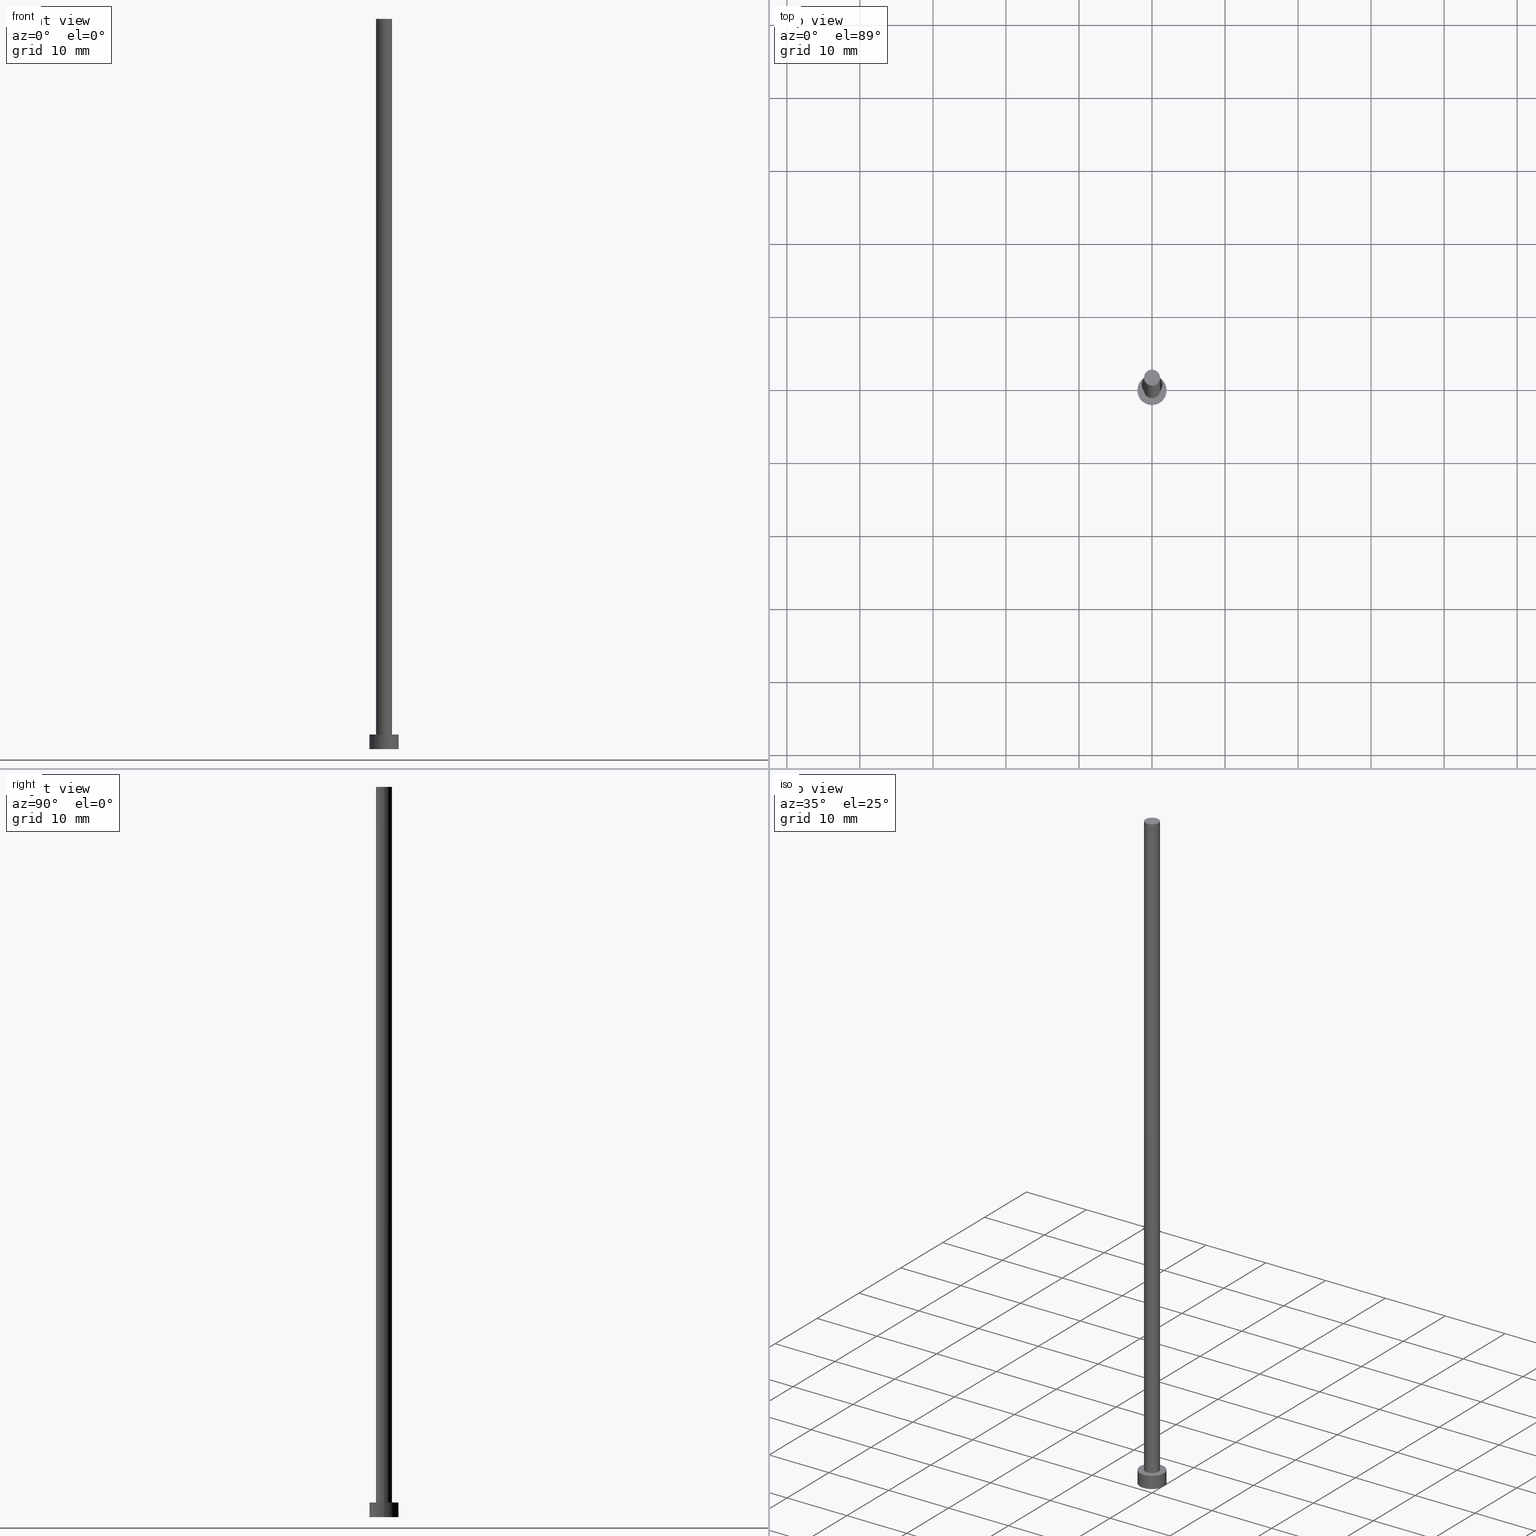
[diagram: canonical four-view strip — front | top / right | iso, engineering-drawing reading convention]
A machine part, canonical four-view strip (front | top / right | iso — engineering-drawing reading convention). The complete STEP part file that produces these views, byte-faithful:
ISO-10303-21;
HEADER;
FILE_DESCRIPTION (( 'STEP AP203' ),
    '1' );
FILE_NAME ('3d77.STEP',
    '2023-02-13T16:42:38',
    ( '' ),
    ( '' ),
    'SwSTEP 2.0',
    'SolidWorks 2019',
    '' );
FILE_SCHEMA (( 'CONFIG_CONTROL_DESIGN' ));
ENDSEC;

DATA;
#1 =( NAMED_UNIT ( * ) PLANE_ANGLE_UNIT ( ) SI_UNIT ( $, .RADIAN. ) );
#2 = AXIS2_PLACEMENT_3D ( 'NONE', #196, #95, #19 ) ;
#3 = ORIENTED_EDGE ( 'NONE', *, *, #223, .T. ) ;
#4 = CIRCLE ( 'NONE', #210, 1.100000000000000089 ) ;
#5 = APPLICATION_CONTEXT ( 'configuration controlled 3d designs of mechanical parts and assemblies' ) ;
#6 = PERSON_AND_ORGANIZATION_ROLE ( 'design_owner' ) ;
#7 = DIRECTION ( 'NONE',  ( 1.000000000000000000, 0.000000000000000000, 0.000000000000000000 ) ) ;
#8 = ORIENTED_EDGE ( 'NONE', *, *, #144, .T. ) ;
#9 = AXIS2_PLACEMENT_3D ( 'NONE', #250, #18, #252 ) ;
#10 = CC_DESIGN_DATE_AND_TIME_ASSIGNMENT ( #139, #163, ( #242 ) ) ;
#11 = EDGE_LOOP ( 'NONE', ( #59, #247, #78, #143 ) ) ;
#12 = AXIS2_PLACEMENT_3D ( 'NONE', #162, #102, #75 ) ;
#13 = PLANE ( 'NONE',  #244 ) ;
#14 = APPROVAL_STATUS ( 'not_yet_approved' ) ;
#15 = DIRECTION ( 'NONE',  ( 0.000000000000000000, 0.000000000000000000, 1.000000000000000000 ) ) ;
#16 = APPLICATION_CONTEXT ( 'configuration controlled 3d designs of mechanical parts and assemblies' ) ;
#17 = CIRCLE ( 'NONE', #213, 2.000000000000000000 ) ;
#18 = DIRECTION ( 'NONE',  ( -0.000000000000000000, -0.000000000000000000, -1.000000000000000000 ) ) ;
#19 = DIRECTION ( 'NONE',  ( -1.000000000000000000, 0.000000000000000000, 0.000000000000000000 ) ) ;
#20 = PRODUCT_DEFINITION_FORMATION_WITH_SPECIFIED_SOURCE ( 'LIBOVOLN�', '', #80, .NOT_KNOWN. ) ;
#21 = EDGE_CURVE ( 'NONE', #26, #137, #4, .T. ) ;
#22 = DIRECTION ( 'NONE',  ( -1.000000000000000000, 0.000000000000000000, 0.000000000000000000 ) ) ;
#23 = DATE_AND_TIME ( #165, #184 ) ;
#24 = EDGE_LOOP ( 'NONE', ( #183, #3, #118, #238 ) ) ;
#25 = CYLINDRICAL_SURFACE ( 'NONE', #90, 2.000000000000000000 ) ;
#26 = VERTEX_POINT ( 'NONE', #121 ) ;
#27 = PERSON_AND_ORGANIZATION ( #119, #72 ) ;
#28 = AXIS2_PLACEMENT_3D ( 'NONE', #85, #120, #164 ) ;
#29 = EDGE_CURVE ( 'NONE', #26, #55, #52, .T. ) ;
#30 = APPROVAL_DATE_TIME ( #249, #158 ) ;
#31 = DATE_AND_TIME ( #108, #176 ) ;
#32 = FACE_BOUND ( 'NONE', #135, .T. ) ;
#33 = ORIENTED_EDGE ( 'NONE', *, *, #223, .F. ) ;
#34 = DIRECTION ( 'NONE',  ( -0.000000000000000000, -0.000000000000000000, -1.000000000000000000 ) ) ;
#35 = VECTOR ( 'NONE', #34, 1000.000000000000000 ) ;
#36 = CALENDAR_DATE ( 2023, 13, 2 ) ;
#37 = FACE_OUTER_BOUND ( 'NONE', #81, .T. ) ;
#38 = CARTESIAN_POINT ( 'NONE',  ( 2.000000000000000000, 2.449293598294706414E-16, 2.000000000000000000 ) ) ;
#39 = CC_DESIGN_PERSON_AND_ORGANIZATION_ASSIGNMENT ( #187, #97, ( #20 ) ) ;
#40 = AXIS2_PLACEMENT_3D ( 'NONE', #174, #54, #86 ) ;
#41 = LINE ( 'NONE', #235, #228 ) ;
#42 = CARTESIAN_POINT ( 'NONE',  ( 0.000000000000000000, 0.000000000000000000, 0.000000000000000000 ) ) ;
#43 = APPROVAL_PERSON_ORGANIZATION ( #239, #246, #204 ) ;
#44 = CIRCLE ( 'NONE', #70, 2.000000000000000000 ) ;
#45 = PERSON_AND_ORGANIZATION ( #119, #72 ) ;
#46 = VERTEX_POINT ( 'NONE', #152 ) ;
#47 = PERSON_AND_ORGANIZATION_ROLE ( 'classification_officer' ) ;
#48 = ORIENTED_EDGE ( 'NONE', *, *, #199, .T. ) ;
#49 = APPROVAL_STATUS ( 'not_yet_approved' ) ;
#50 = DIRECTION ( 'NONE',  ( 1.000000000000000000, 0.000000000000000000, 0.000000000000000000 ) ) ;
#51 = PLANE ( 'NONE',  #12 ) ;
#52 = LINE ( 'NONE', #123, #146 ) ;
#53 = CLOSED_SHELL ( 'NONE', ( #156, #215, #237, #167, #79, #173, #255 ) ) ;
#54 = DIRECTION ( 'NONE',  ( 0.000000000000000000, 0.000000000000000000, 1.000000000000000000 ) ) ;
#55 = VERTEX_POINT ( 'NONE', #150 ) ;
#56 = CARTESIAN_POINT ( 'NONE',  ( 0.000000000000000000, 0.000000000000000000, 0.000000000000000000 ) ) ;
#57 = CARTESIAN_POINT ( 'NONE',  ( -1.100000000000000089, 0.000000000000000000, 2.000000000000000000 ) ) ;
#58 = CC_DESIGN_PERSON_AND_ORGANIZATION_ASSIGNMENT ( #45, #6, ( #80 ) ) ;
#59 = ORIENTED_EDGE ( 'NONE', *, *, #21, .F. ) ;
#60 = FACE_OUTER_BOUND ( 'NONE', #188, .T. ) ;
#61 = SHAPE_DEFINITION_REPRESENTATION ( #111, #175 ) ;
#62 = COORDINATED_UNIVERSAL_TIME_OFFSET ( 1, 0, .AHEAD. ) ;
#63 = LOCAL_TIME ( 17, 42, 38.00000000000000000, #88 ) ;
#64 = ORIENTED_EDGE ( 'NONE', *, *, #232, .F. ) ;
#65 = CIRCLE ( 'NONE', #40, 1.100000000000000089 ) ;
#66 = CARTESIAN_POINT ( 'NONE',  ( 0.000000000000000000, 0.000000000000000000, 100.0000000000000000 ) ) ;
#67 =( NAMED_UNIT ( * ) SI_UNIT ( $, .STERADIAN. ) SOLID_ANGLE_UNIT ( ) );
#68 = ORIENTED_EDGE ( 'NONE', *, *, #219, .T. ) ;
#69 = CC_DESIGN_APPROVAL ( #246, ( #242 ) ) ;
#70 = AXIS2_PLACEMENT_3D ( 'NONE', #42, #132, #96 ) ;
#71 = DIRECTION ( 'NONE',  ( 0.000000000000000000, 0.000000000000000000, 1.000000000000000000 ) ) ;
#72 = ORGANIZATION ( 'NEUR�EN�', 'NEUR�EN�', '' ) ;
#73 = FACE_OUTER_BOUND ( 'NONE', #24, .T. ) ;
#74 = VECTOR ( 'NONE', #178, 1000.000000000000000 ) ;
#75 = DIRECTION ( 'NONE',  ( 1.000000000000000000, 0.000000000000000000, -0.000000000000000000 ) ) ;
#76 = PRODUCT_RELATED_PRODUCT_CATEGORY ( 'detail', '', ( #80 ) ) ;
#77 = EDGE_LOOP ( 'NONE', ( #8, #169 ) ) ;
#78 = ORIENTED_EDGE ( 'NONE', *, *, #195, .T. ) ;
#79 = ADVANCED_FACE ( 'NONE', ( #170 ), #124, .F. ) ;
#80 = PRODUCT ( '3d77', '3d77', '', ( #179 ) ) ;
#81 = EDGE_LOOP ( 'NONE', ( #233, #186, #68, #245 ) ) ;
#82 = APPROVAL_DATE_TIME ( #198, #246 ) ;
#83 = CIRCLE ( 'NONE', #154, 1.100000000000000089 ) ;
#84 = COORDINATED_UNIVERSAL_TIME_OFFSET ( 1, 0, .AHEAD. ) ;
#85 = CARTESIAN_POINT ( 'NONE',  ( 0.000000000000000000, 0.000000000000000000, 0.000000000000000000 ) ) ;
#86 = DIRECTION ( 'NONE',  ( 1.000000000000000000, 0.000000000000000000, 0.000000000000000000 ) ) ;
#87 = EDGE_CURVE ( 'NONE', #137, #26, #65, .T. ) ;
#88 = COORDINATED_UNIVERSAL_TIME_OFFSET ( 1, 0, .AHEAD. ) ;
#89 = CYLINDRICAL_SURFACE ( 'NONE', #9, 1.100000000000000089 ) ;
#90 = AXIS2_PLACEMENT_3D ( 'NONE', #243, #181, #22 ) ;
#91 = DIRECTION ( 'NONE',  ( -0.000000000000000000, -0.000000000000000000, -1.000000000000000000 ) ) ;
#92 = DIRECTION ( 'NONE',  ( 0.000000000000000000, 0.000000000000000000, 1.000000000000000000 ) ) ;
#93 = CARTESIAN_POINT ( 'NONE',  ( 0.000000000000000000, 0.000000000000000000, 0.000000000000000000 ) ) ;
#94 = CC_DESIGN_APPROVAL ( #158, ( #20 ) ) ;
#95 = DIRECTION ( 'NONE',  ( -0.000000000000000000, -0.000000000000000000, -1.000000000000000000 ) ) ;
#96 = DIRECTION ( 'NONE',  ( 1.000000000000000000, 0.000000000000000000, 0.000000000000000000 ) ) ;
#97 = PERSON_AND_ORGANIZATION_ROLE ( 'creator' ) ;
#98 = APPLICATION_PROTOCOL_DEFINITION ( 'international standard', 'config_control_design', 1994, #5 ) ;
#99 = CC_DESIGN_PERSON_AND_ORGANIZATION_ASSIGNMENT ( #27, #103, ( #177 ) ) ;
#100 = VERTEX_POINT ( 'NONE', #38 ) ;
#101 = CALENDAR_DATE ( 2023, 13, 2 ) ;
#102 = DIRECTION ( 'NONE',  ( 0.000000000000000000, 0.000000000000000000, 1.000000000000000000 ) ) ;
#103 = PERSON_AND_ORGANIZATION_ROLE ( 'creator' ) ;
#104 = CC_DESIGN_SECURITY_CLASSIFICATION ( #242, ( #20 ) ) ;
#105 = ORIENTED_EDGE ( 'NONE', *, *, #195, .F. ) ;
#106 = APPROVAL_ROLE ( '' ) ;
#107 = CARTESIAN_POINT ( 'NONE',  ( 0.000000000000000000, 0.000000000000000000, 2.000000000000000000 ) ) ;
#108 = CALENDAR_DATE ( 2023, 13, 2 ) ;
#109 = DIRECTION ( 'NONE',  ( -0.000000000000000000, -0.000000000000000000, -1.000000000000000000 ) ) ;
#110 = CC_DESIGN_PERSON_AND_ORGANIZATION_ASSIGNMENT ( #136, #134, ( #20 ) ) ;
#111 = PRODUCT_DEFINITION_SHAPE ( 'NONE', 'NONE',  #177 ) ;
#112 = EDGE_LOOP ( 'NONE', ( #114, #64 ) ) ;
#113 = LINE ( 'NONE', #209, #35 ) ;
#114 = ORIENTED_EDGE ( 'NONE', *, *, #199, .F. ) ;
#115 = CARTESIAN_POINT ( 'NONE',  ( -2.000000000000000000, 0.000000000000000000, 2.000000000000000000 ) ) ;
#116 = AXIS2_PLACEMENT_3D ( 'NONE', #93, #92, #159 ) ;
#117 = APPROVAL_ROLE ( '' ) ;
#118 = ORIENTED_EDGE ( 'NONE', *, *, #232, .T. ) ;
#119 = PERSON ( 'NEUR�EN�', 'NEUR�EN�', 'NEUR�EN�', ('NEUR�EN�'), ('NEUR�EN�'), ('NEUR�EN�') ) ;
#120 = DIRECTION ( 'NONE',  ( 0.000000000000000000, 0.000000000000000000, 1.000000000000000000 ) ) ;
#121 = CARTESIAN_POINT ( 'NONE',  ( 1.100000000000000089, 1.347111479062088503E-16, 100.0000000000000000 ) ) ;
#122 = CALENDAR_DATE ( 2023, 13, 2 ) ;
#123 = CARTESIAN_POINT ( 'NONE',  ( 1.100000000000000089, 1.347111479062088503E-16, 100.0000000000000000 ) ) ;
#124 = PLANE ( 'NONE',  #225 ) ;
#125 = ORIENTED_EDGE ( 'NONE', *, *, #144, .F. ) ;
#126 = DIRECTION ( 'NONE',  ( -1.000000000000000000, 0.000000000000000000, 0.000000000000000000 ) ) ;
#127 = CC_DESIGN_DATE_AND_TIME_ASSIGNMENT ( #31, #149, ( #177 ) ) ;
#128 = LOCAL_TIME ( 17, 42, 38.00000000000000000, #201 ) ;
#129 = AXIS2_PLACEMENT_3D ( 'NONE', #171, #109, #126 ) ;
#130 = CYLINDRICAL_SURFACE ( 'NONE', #129, 1.100000000000000089 ) ;
#131 = ORIENTED_EDGE ( 'NONE', *, *, #21, .T. ) ;
#132 = DIRECTION ( 'NONE',  ( 0.000000000000000000, 0.000000000000000000, 1.000000000000000000 ) ) ;
#133 = CARTESIAN_POINT ( 'NONE',  ( 0.000000000000000000, 0.000000000000000000, 2.000000000000000000 ) ) ;
#134 = PERSON_AND_ORGANIZATION_ROLE ( 'design_supplier' ) ;
#135 = EDGE_LOOP ( 'NONE', ( #221, #105 ) ) ;
#136 = PERSON_AND_ORGANIZATION ( #119, #72 ) ;
#137 = VERTEX_POINT ( 'NONE', #248 ) ;
#138 = AXIS2_PLACEMENT_3D ( 'NONE', #207, #190, #230 ) ;
#139 = DATE_AND_TIME ( #101, #128 ) ;
#140 = FACE_OUTER_BOUND ( 'NONE', #203, .T. ) ;
#141 = DIRECTION ( 'NONE',  ( 0.000000000000000000, 0.000000000000000000, 1.000000000000000000 ) ) ;
#142 = PERSON_AND_ORGANIZATION ( #119, #72 ) ;
#143 = ORIENTED_EDGE ( 'NONE', *, *, #219, .F. ) ;
#144 = EDGE_CURVE ( 'NONE', #227, #100, #180, .T. ) ;
#145 = CIRCLE ( 'NONE', #116, 2.000000000000000000 ) ;
#146 = VECTOR ( 'NONE', #206, 1000.000000000000000 ) ;
#147 = ORIENTED_EDGE ( 'NONE', *, *, #148, .T. ) ;
#148 = EDGE_CURVE ( 'NONE', #227, #46, #113, .T. ) ;
#149 = DATE_TIME_ROLE ( 'creation_date' ) ;
#150 = CARTESIAN_POINT ( 'NONE',  ( 1.100000000000000089, 1.347111479062088503E-16, 2.000000000000000000 ) ) ;
#151 = VERTEX_POINT ( 'NONE', #57 ) ;
#152 = CARTESIAN_POINT ( 'NONE',  ( -2.000000000000000000, 0.000000000000000000, 0.000000000000000000 ) ) ;
#153 = LOCAL_TIME ( 17, 42, 38.00000000000000000, #84 ) ;
#154 = AXIS2_PLACEMENT_3D ( 'NONE', #133, #216, #155 ) ;
#155 = DIRECTION ( 'NONE',  ( 1.000000000000000000, 0.000000000000000000, 0.000000000000000000 ) ) ;
#156 = ADVANCED_FACE ( 'NONE', ( #191 ), #130, .T. ) ;
#157 = LINE ( 'NONE', #160, #74 ) ;
#158 = APPROVAL ( #14, 'NEUR�EN�' ) ;
#159 = DIRECTION ( 'NONE',  ( 1.000000000000000000, 0.000000000000000000, 0.000000000000000000 ) ) ;
#160 = CARTESIAN_POINT ( 'NONE',  ( -1.100000000000000089, 0.000000000000000000, 100.0000000000000000 ) ) ;
#161 = AXIS2_PLACEMENT_3D ( 'NONE', #251, #71, #194 ) ;
#162 = CARTESIAN_POINT ( 'NONE',  ( 0.000000000000000000, 0.000000000000000000, 100.0000000000000000 ) ) ;
#163 = DATE_TIME_ROLE ( 'classification_date' ) ;
#164 = DIRECTION ( 'NONE',  ( 1.000000000000000000, 0.000000000000000000, 0.000000000000000000 ) ) ;
#165 = CALENDAR_DATE ( 2023, 13, 2 ) ;
#166 = VERTEX_POINT ( 'NONE', #192 ) ;
#167 = ADVANCED_FACE ( 'NONE', ( #32, #211 ), #13, .T. ) ;
#168 = UNCERTAINTY_MEASURE_WITH_UNIT (LENGTH_MEASURE( 1.000000000000000082E-05 ), #226, 'distance_accuracy_value', 'NONE');
#169 = ORIENTED_EDGE ( 'NONE', *, *, #253, .T. ) ;
#170 = FACE_OUTER_BOUND ( 'NONE', #112, .T. ) ;
#171 = CARTESIAN_POINT ( 'NONE',  ( 0.000000000000000000, 0.000000000000000000, 100.0000000000000000 ) ) ;
#172 = PERSON_AND_ORGANIZATION ( #119, #72 ) ;
#173 = ADVANCED_FACE ( 'NONE', ( #37 ), #89, .T. ) ;
#174 = CARTESIAN_POINT ( 'NONE',  ( 0.000000000000000000, 0.000000000000000000, 100.0000000000000000 ) ) ;
#175 = ADVANCED_BREP_SHAPE_REPRESENTATION ( '3d77', ( #234, #28 ), #231 ) ;
#176 = LOCAL_TIME ( 17, 42, 38.00000000000000000, #62 ) ;
#177 = PRODUCT_DEFINITION ( 'NEZN�M�', '', #20, #182 ) ;
#178 = DIRECTION ( 'NONE',  ( -0.000000000000000000, -0.000000000000000000, -1.000000000000000000 ) ) ;
#179 = MECHANICAL_CONTEXT ( 'NONE', #5, 'mechanical' ) ;
#180 = CIRCLE ( 'NONE', #138, 2.000000000000000000 ) ;
#181 = DIRECTION ( 'NONE',  ( -0.000000000000000000, -0.000000000000000000, -1.000000000000000000 ) ) ;
#182 = DESIGN_CONTEXT ( 'detailed design', #16, 'design' ) ;
#183 = ORIENTED_EDGE ( 'NONE', *, *, #253, .F. ) ;
#184 = LOCAL_TIME ( 17, 42, 38.00000000000000000, #200 ) ;
#185 = DIRECTION ( 'NONE',  ( 0.000000000000000000, 0.000000000000000000, 1.000000000000000000 ) ) ;
#186 = ORIENTED_EDGE ( 'NONE', *, *, #87, .F. ) ;
#187 = PERSON_AND_ORGANIZATION ( #119, #72 ) ;
#188 = EDGE_LOOP ( 'NONE', ( #33, #125, #147, #48 ) ) ;
#189 = DIRECTION ( 'NONE',  ( 1.000000000000000000, 0.000000000000000000, -0.000000000000000000 ) ) ;
#190 = DIRECTION ( 'NONE',  ( 0.000000000000000000, 0.000000000000000000, 1.000000000000000000 ) ) ;
#191 = FACE_OUTER_BOUND ( 'NONE', #11, .T. ) ;
#192 = CARTESIAN_POINT ( 'NONE',  ( 2.000000000000000000, 2.449293598294706414E-16, 0.000000000000000000 ) ) ;
#193 = DIRECTION ( 'NONE',  ( 0.000000000000000000, 0.000000000000000000, 1.000000000000000000 ) ) ;
#194 = DIRECTION ( 'NONE',  ( 1.000000000000000000, 0.000000000000000000, 0.000000000000000000 ) ) ;
#195 = EDGE_CURVE ( 'NONE', #55, #151, #83, .T. ) ;
#196 = CARTESIAN_POINT ( 'NONE',  ( 0.000000000000000000, 0.000000000000000000, 2.000000000000000000 ) ) ;
#197 = CIRCLE ( 'NONE', #161, 1.100000000000000089 ) ;
#198 = DATE_AND_TIME ( #122, #153 ) ;
#199 = EDGE_CURVE ( 'NONE', #46, #166, #44, .T. ) ;
#200 = COORDINATED_UNIVERSAL_TIME_OFFSET ( 1, 0, .AHEAD. ) ;
#201 = COORDINATED_UNIVERSAL_TIME_OFFSET ( 1, 0, .AHEAD. ) ;
#202 = APPROVAL_STATUS ( 'not_yet_approved' ) ;
#203 = EDGE_LOOP ( 'NONE', ( #241, #131 ) ) ;
#204 = APPROVAL_ROLE ( '' ) ;
#205 = APPLICATION_PROTOCOL_DEFINITION ( 'international standard', 'config_control_design', 1994, #16 ) ;
#206 = DIRECTION ( 'NONE',  ( -0.000000000000000000, -0.000000000000000000, -1.000000000000000000 ) ) ;
#207 = CARTESIAN_POINT ( 'NONE',  ( 0.000000000000000000, 0.000000000000000000, 2.000000000000000000 ) ) ;
#208 = APPROVAL ( #202, 'NEUR�EN�' ) ;
#209 = CARTESIAN_POINT ( 'NONE',  ( -2.000000000000000000, 0.000000000000000000, 2.000000000000000000 ) ) ;
#210 = AXIS2_PLACEMENT_3D ( 'NONE', #66, #141, #50 ) ;
#211 = FACE_OUTER_BOUND ( 'NONE', #77, .T. ) ;
#212 = DIRECTION ( 'NONE',  ( 1.000000000000000000, 0.000000000000000000, -0.000000000000000000 ) ) ;
#213 = AXIS2_PLACEMENT_3D ( 'NONE', #224, #185, #7 ) ;
#214 = CYLINDRICAL_SURFACE ( 'NONE', #2, 2.000000000000000000 ) ;
#215 = ADVANCED_FACE ( 'NONE', ( #73 ), #214, .T. ) ;
#216 = DIRECTION ( 'NONE',  ( 0.000000000000000000, 0.000000000000000000, 1.000000000000000000 ) ) ;
#217 = APPROVAL_PERSON_ORGANIZATION ( #172, #158, #106 ) ;
#218 = PERSON_AND_ORGANIZATION ( #119, #72 ) ;
#219 = EDGE_CURVE ( 'NONE', #137, #151, #157, .T. ) ;
#220 = SECURITY_CLASSIFICATION_LEVEL ( 'unclassified' ) ;
#221 = ORIENTED_EDGE ( 'NONE', *, *, #229, .F. ) ;
#222 = APPROVAL_PERSON_ORGANIZATION ( #142, #208, #117 ) ;
#223 = EDGE_CURVE ( 'NONE', #100, #166, #41, .T. ) ;
#224 = CARTESIAN_POINT ( 'NONE',  ( 0.000000000000000000, 0.000000000000000000, 2.000000000000000000 ) ) ;
#225 = AXIS2_PLACEMENT_3D ( 'NONE', #56, #193, #212 ) ;
#226 =( LENGTH_UNIT ( ) NAMED_UNIT ( * ) SI_UNIT ( .MILLI., .METRE. ) );
#227 = VERTEX_POINT ( 'NONE', #115 ) ;
#228 = VECTOR ( 'NONE', #91, 1000.000000000000000 ) ;
#229 = EDGE_CURVE ( 'NONE', #151, #55, #197, .T. ) ;
#230 = DIRECTION ( 'NONE',  ( 1.000000000000000000, 0.000000000000000000, 0.000000000000000000 ) ) ;
#231 =( GEOMETRIC_REPRESENTATION_CONTEXT ( 3 ) GLOBAL_UNCERTAINTY_ASSIGNED_CONTEXT ( ( #168 ) ) GLOBAL_UNIT_ASSIGNED_CONTEXT ( ( #226, #1, #67 ) ) REPRESENTATION_CONTEXT ( 'NONE', 'WORKASPACE' ) );
#232 = EDGE_CURVE ( 'NONE', #166, #46, #145, .T. ) ;
#233 = ORIENTED_EDGE ( 'NONE', *, *, #29, .F. ) ;
#234 = MANIFOLD_SOLID_BREP ( 'P�idat vysunut�m3', #53 ) ;
#235 = CARTESIAN_POINT ( 'NONE',  ( 2.000000000000000000, 2.449293598294706414E-16, 2.000000000000000000 ) ) ;
#236 = CC_DESIGN_PERSON_AND_ORGANIZATION_ASSIGNMENT ( #218, #47, ( #242 ) ) ;
#237 = ADVANCED_FACE ( 'NONE', ( #60 ), #25, .T. ) ;
#238 = ORIENTED_EDGE ( 'NONE', *, *, #148, .F. ) ;
#239 = PERSON_AND_ORGANIZATION ( #119, #72 ) ;
#240 = APPROVAL_DATE_TIME ( #23, #208 ) ;
#241 = ORIENTED_EDGE ( 'NONE', *, *, #87, .T. ) ;
#242 = SECURITY_CLASSIFICATION ( '', '', #220 ) ;
#243 = CARTESIAN_POINT ( 'NONE',  ( 0.000000000000000000, 0.000000000000000000, 2.000000000000000000 ) ) ;
#244 = AXIS2_PLACEMENT_3D ( 'NONE', #107, #15, #189 ) ;
#245 = ORIENTED_EDGE ( 'NONE', *, *, #229, .T. ) ;
#246 = APPROVAL ( #49, 'NEUR�EN�' ) ;
#247 = ORIENTED_EDGE ( 'NONE', *, *, #29, .T. ) ;
#248 = CARTESIAN_POINT ( 'NONE',  ( -1.100000000000000089, 0.000000000000000000, 100.0000000000000000 ) ) ;
#249 = DATE_AND_TIME ( #36, #63 ) ;
#250 = CARTESIAN_POINT ( 'NONE',  ( 0.000000000000000000, 0.000000000000000000, 100.0000000000000000 ) ) ;
#251 = CARTESIAN_POINT ( 'NONE',  ( 0.000000000000000000, 0.000000000000000000, 2.000000000000000000 ) ) ;
#252 = DIRECTION ( 'NONE',  ( -1.000000000000000000, 0.000000000000000000, 0.000000000000000000 ) ) ;
#253 = EDGE_CURVE ( 'NONE', #100, #227, #17, .T. ) ;
#254 = CC_DESIGN_APPROVAL ( #208, ( #177 ) ) ;
#255 = ADVANCED_FACE ( 'NONE', ( #140 ), #51, .T. ) ;
ENDSEC;
END-ISO-10303-21;
